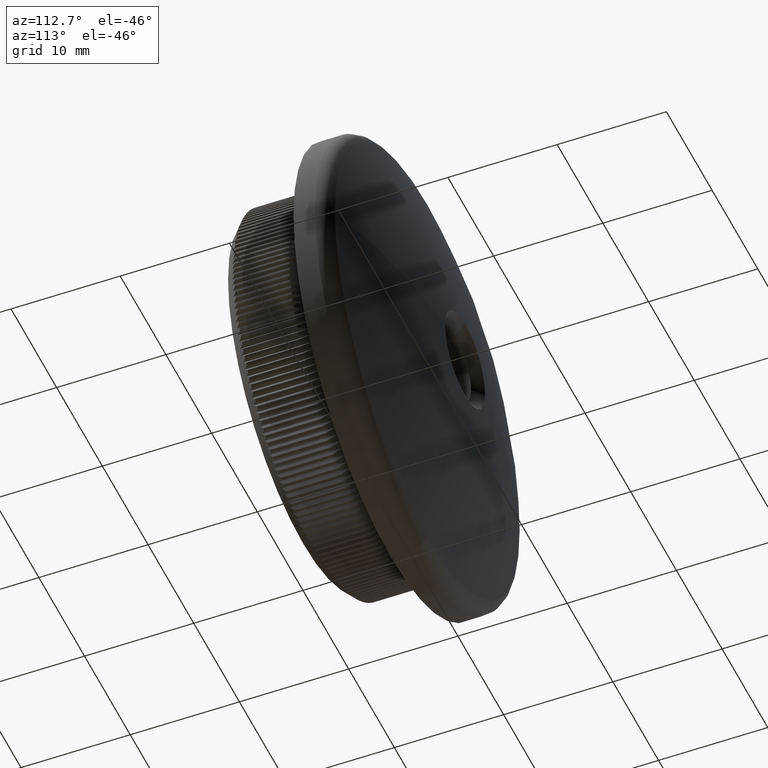
[diagram: clean part render]
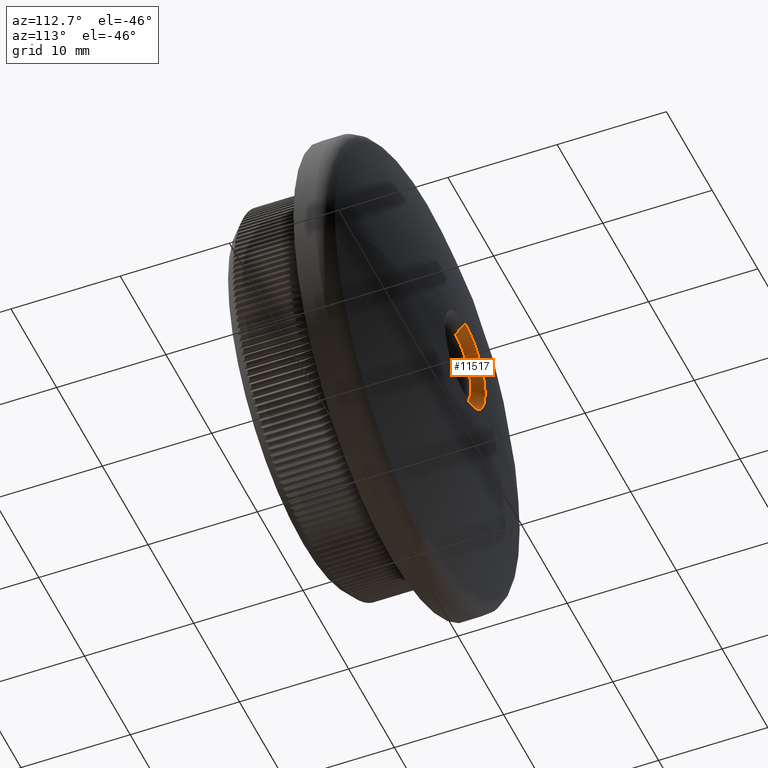
[diagram: same view with one face highlighted and labeled with its STEP entity id]
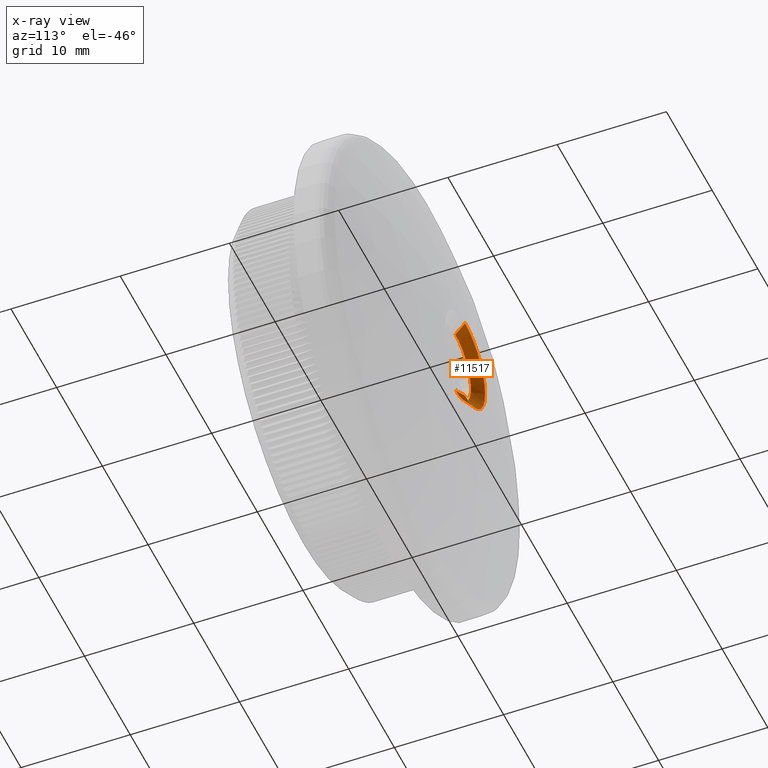
[diagram: x-ray of the same camera — body ghosted, the highlighted face saturated]
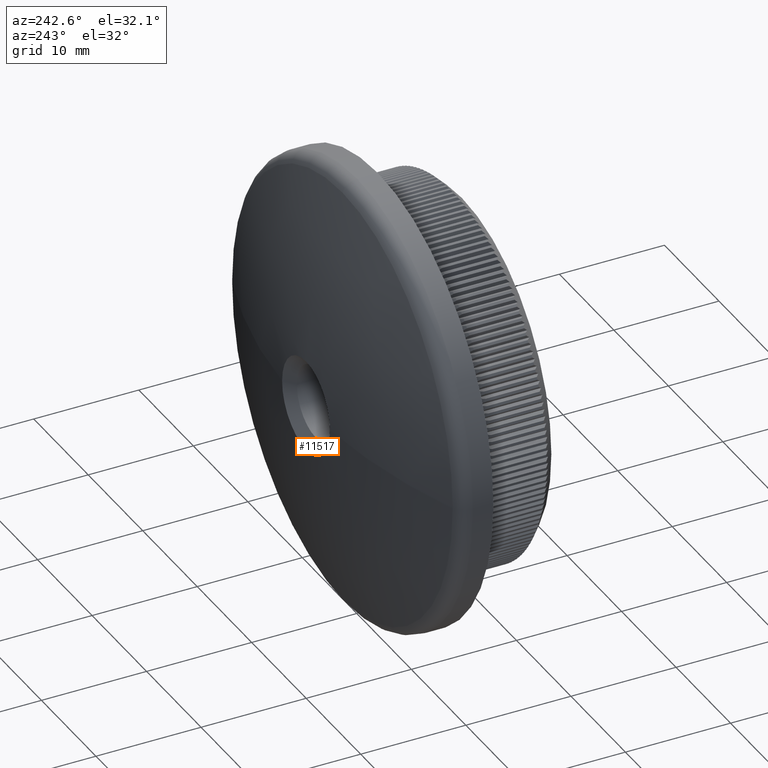
[diagram: same view with one face highlighted and labeled with its STEP entity id]
A machine part, auxiliary view. The second image highlights one B-rep face of the part: STEP entity #11517.
The next image is the same camera in x-ray: the body ghosted, the highlighted face saturated — about 0% of this face is hidden behind the body in this view.
A second angle (auxiliary view) of the same face is appended — the face is thin or edge-on in the first view.
In plain terms, the highlighted conical surface has half-angle 48.35 deg.
Its self-contained STEP definition (entity closure, byte-faithful):
#628 = VECTOR ( 'NONE', #4533, 1000.000000000000100 ) ;
#961 = VERTEX_POINT ( 'NONE', #17499 ) ;
#1266 = DIRECTION ( 'NONE',  ( 0.0000000000000000000, 1.000000000000000000, 0.0000000000000000000 ) ) ;
#3076 = VERTEX_POINT ( 'NONE', #8459 ) ;
#4164 = CONICAL_SURFACE ( 'NONE', #7205, 3.399999999999995500, 0.8438708040748624800 ) ;
#4533 = DIRECTION ( 'NONE',  ( 0.0000000000000000000, 0.6645754650830519900, 0.7472211528119671000 ) ) ;
#4984 = EDGE_LOOP ( 'NONE', ( #11623, #12042, #10963, #23961, #20390 ) ) ;
#5447 = EDGE_CURVE ( 'NONE', #7567, #28134, #24496, .T. ) ;
#5649 = CARTESIAN_POINT ( 'NONE',  ( 0.0000000000000000000, 13.95425291678296300, 0.0000000000000000000 ) ) ;
#6640 = CARTESIAN_POINT ( 'NONE',  ( 0.0000000000000000000, 13.95425291678296300, 3.399999999999995500 ) ) ;
#6695 = DIRECTION ( 'NONE',  ( 0.0000000000000000000, 1.000000000000000000, 0.0000000000000000000 ) ) ;
#7013 = DIRECTION ( 'NONE',  ( 0.0000000000000000000, 0.0000000000000000000, 1.000000000000000000 ) ) ;
#7205 = AXIS2_PLACEMENT_3D ( 'NONE', #5649, #1266, #10961 ) ;
#7567 = VERTEX_POINT ( 'NONE', #19076 ) ;
#7735 = AXIS2_PLACEMENT_3D ( 'NONE', #28082, #6695, #7013 ) ;
#8459 = CARTESIAN_POINT ( 'NONE',  ( 4.163799117100995600E-016, 13.95425291678296300, 3.399999999999995500 ) ) ;
#8515 = CARTESIAN_POINT ( 'NONE',  ( 0.0000000000000000000, 14.83418710009236300, 4.389361584043635700 ) ) ;
#9181 = DIRECTION ( 'NONE',  ( 9.150819930463708100E-017, 0.6645754650830519900, -0.7472211528119671000 ) ) ;
#10961 = DIRECTION ( 'NONE',  ( 0.0000000000000000000, 0.0000000000000000000, 1.000000000000000000 ) ) ;
#10963 = ORIENTED_EDGE ( 'NONE', *, *, #27960, .F. ) ;
#11517 = ADVANCED_FACE ( 'NONE', ( #15347 ), #4164, .F. ) ;
#11623 = ORIENTED_EDGE ( 'NONE', *, *, #21357, .F. ) ;
#12042 = ORIENTED_EDGE ( 'NONE', *, *, #5447, .T. ) ;
#12942 = VERTEX_POINT ( 'NONE', #8515 ) ;
#12985 = VECTOR ( 'NONE', #9181, 1000.000000000000100 ) ;
#15347 = FACE_OUTER_BOUND ( 'NONE', #4984, .T. ) ;
#17499 = CARTESIAN_POINT ( 'NONE',  ( -4.389361584043620600, 14.83418710009236300, 1.506971330829536000E-015 ) ) ;
#17933 = CARTESIAN_POINT ( 'NONE',  ( 0.0000000000000000000, 14.83418710009236300, 0.0000000000000000000 ) ) ;
#18028 = DIRECTION ( 'NONE',  ( -0.0000000000000000000, -1.000000000000000000, -0.0000000000000000000 ) ) ;
#19076 = CARTESIAN_POINT ( 'NONE',  ( 0.0000000000000000000, 13.95425291678296300, -3.399999999999995500 ) ) ;
#19952 = LINE ( 'NONE', #6640, #628 ) ;
#20390 = ORIENTED_EDGE ( 'NONE', *, *, #28602, .F. ) ;
#20413 = EDGE_CURVE ( 'NONE', #12942, #961, #30185, .T. ) ;
#21083 = CIRCLE ( 'NONE', #22509, 4.389361584043620600 ) ;
#21357 = EDGE_CURVE ( 'NONE', #7567, #3076, #21664, .T. ) ;
#21664 = CIRCLE ( 'NONE', #7735, 3.399999999999995500 ) ;
#22509 = AXIS2_PLACEMENT_3D ( 'NONE', #17933, #18028, #23028 ) ;
#22896 = DIRECTION ( 'NONE',  ( 0.0000000000000000000, 0.0000000000000000000, -1.000000000000000000 ) ) ;
#23028 = DIRECTION ( 'NONE',  ( 0.0000000000000000000, 0.0000000000000000000, -1.000000000000000000 ) ) ;
#23961 = ORIENTED_EDGE ( 'NONE', *, *, #20413, .F. ) ;
#24496 = LINE ( 'NONE', #28051, #12985 ) ;
#25394 = CARTESIAN_POINT ( 'NONE',  ( 0.0000000000000000000, 14.83418710009236300, 0.0000000000000000000 ) ) ;
#27011 = AXIS2_PLACEMENT_3D ( 'NONE', #25394, #27444, #22896 ) ;
#27444 = DIRECTION ( 'NONE',  ( -0.0000000000000000000, -1.000000000000000000, -0.0000000000000000000 ) ) ;
#27960 = EDGE_CURVE ( 'NONE', #961, #28134, #21083, .T. ) ;
#28051 = CARTESIAN_POINT ( 'NONE',  ( 4.163799117100995600E-016, 13.95425291678296300, -3.399999999999995500 ) ) ;
#28082 = CARTESIAN_POINT ( 'NONE',  ( 0.0000000000000000000, 13.95425291678296300, 0.0000000000000000000 ) ) ;
#28134 = VERTEX_POINT ( 'NONE', #28620 ) ;
#28602 = EDGE_CURVE ( 'NONE', #3076, #12942, #19952, .T. ) ;
#28620 = CARTESIAN_POINT ( 'NONE',  ( 5.375417614199396000E-016, 14.83418710009236300, -4.389361584043635700 ) ) ;
#30185 = CIRCLE ( 'NONE', #27011, 4.389361584043620600 ) ;